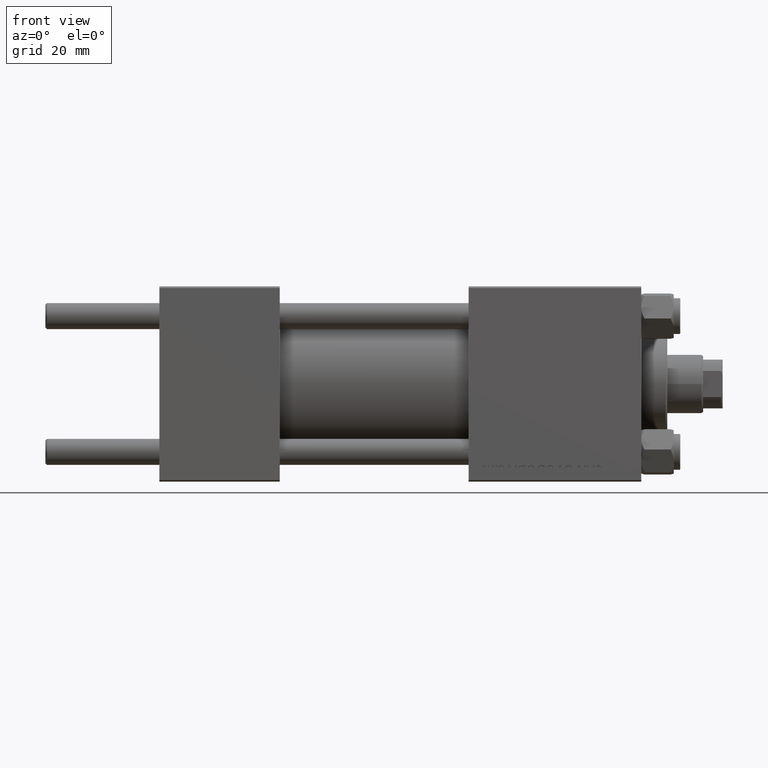
[diagram: clean part render]
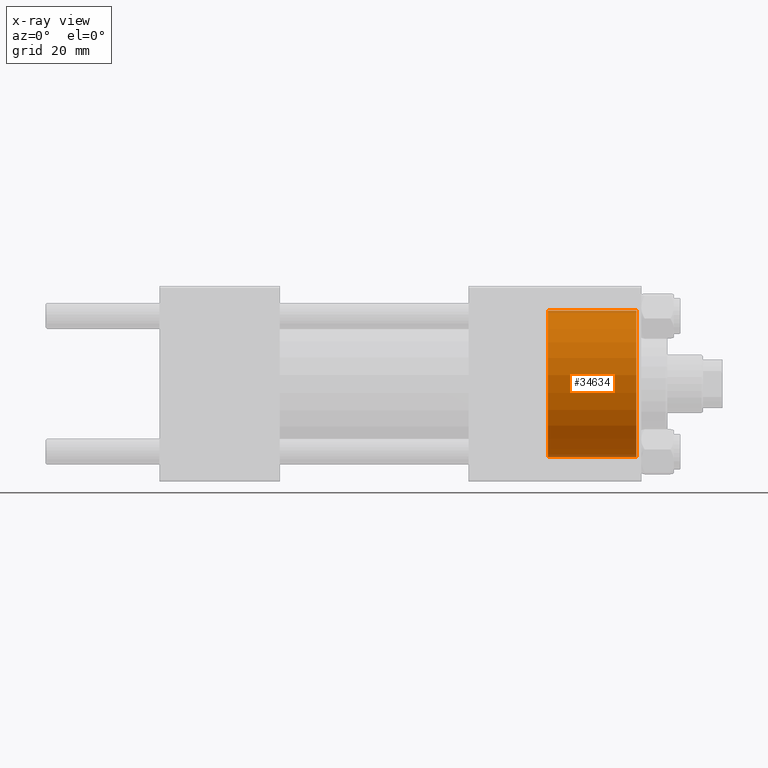
[diagram: x-ray — body ghosted, one internal face saturated and labeled with its STEP entity id]
A machine part, front view, then the same camera in x-ray: the body is ghosted and one INTERNAL B-rep face — a face not visible from any outside direction — is saturated and labeled: STEP entity #34634.
In plain terms, the highlighted cylindrical surface (partial cylindrical patch) has radius 22.5 mm, axis along (1, 0, 0).
Its self-contained STEP definition (entity closure, byte-faithful):
#208 = ORIENTED_EDGE ( 'NONE', *, *, #4342, .F. ) ;
#394 = AXIS2_PLACEMENT_3D ( 'NONE', #34144, #15897, #34658 ) ;
#1663 = VERTEX_POINT ( 'NONE', #7609 ) ;
#2715 = CIRCLE ( 'NONE', #9202, 22.50000000000000355 ) ;
#3364 = CARTESIAN_POINT ( 'NONE',  ( 119.2999999999999829, 0.000000000000000000, -22.50000000000000355 ) ) ;
#3372 = VERTEX_POINT ( 'NONE', #7784 ) ;
#3857 = VERTEX_POINT ( 'NONE', #5865 ) ;
#4182 = CARTESIAN_POINT ( 'NONE',  ( 119.2999999999999829, 0.000000000000000000, -22.50000000000000355 ) ) ;
#4342 = EDGE_CURVE ( 'NONE', #3857, #21790, #2715, .T. ) ;
#5433 = AXIS2_PLACEMENT_3D ( 'NONE', #44154, #21634, #48450 ) ;
#5865 = CARTESIAN_POINT ( 'NONE',  ( 119.2999999999999829, 2.755455298081545172E-15, 22.50000000000000355 ) ) ;
#7609 = CARTESIAN_POINT ( 'NONE',  ( 146.4999999999999432, 0.000000000000000000, -22.50000000000000355 ) ) ;
#7784 = CARTESIAN_POINT ( 'NONE',  ( 146.4999999999999432, 2.755455298081545172E-15, 22.50000000000000355 ) ) ;
#9202 = AXIS2_PLACEMENT_3D ( 'NONE', #28311, #21198, #24495 ) ;
#9568 = ORIENTED_EDGE ( 'NONE', *, *, #42548, .F. ) ;
#10959 = DIRECTION ( 'NONE',  ( 1.000000000000000000, -0.000000000000000000, -0.000000000000000000 ) ) ;
#14848 = ORIENTED_EDGE ( 'NONE', *, *, #16673, .T. ) ;
#15897 = DIRECTION ( 'NONE',  ( 1.000000000000000000, -0.000000000000000000, -0.000000000000000000 ) ) ;
#16673 = EDGE_CURVE ( 'NONE', #3372, #1663, #36195, .T. ) ;
#21198 = DIRECTION ( 'NONE',  ( 1.000000000000000000, 0.000000000000000000, 0.000000000000000000 ) ) ;
#21634 = DIRECTION ( 'NONE',  ( 1.000000000000000000, 0.000000000000000000, 0.000000000000000000 ) ) ;
#21760 = EDGE_CURVE ( 'NONE', #3857, #3372, #27427, .T. ) ;
#21790 = VERTEX_POINT ( 'NONE', #3364 ) ;
#24120 = VECTOR ( 'NONE', #10959, 1000.000000000000000 ) ;
#24495 = DIRECTION ( 'NONE',  ( 0.000000000000000000, 0.000000000000000000, -1.000000000000000000 ) ) ;
#26736 = DIRECTION ( 'NONE',  ( 1.000000000000000000, -0.000000000000000000, -0.000000000000000000 ) ) ;
#27184 = ORIENTED_EDGE ( 'NONE', *, *, #21760, .T. ) ;
#27427 = LINE ( 'NONE', #34772, #24120 ) ;
#28145 = VECTOR ( 'NONE', #26736, 1000.000000000000000 ) ;
#28311 = CARTESIAN_POINT ( 'NONE',  ( 119.2999999999999829, 0.000000000000000000, 0.000000000000000000 ) ) ;
#32683 = EDGE_LOOP ( 'NONE', ( #208, #27184, #14848, #9568 ) ) ;
#34144 = CARTESIAN_POINT ( 'NONE',  ( 119.2999999999999829, 0.000000000000000000, 0.000000000000000000 ) ) ;
#34400 = CYLINDRICAL_SURFACE ( 'NONE', #394, 22.50000000000000355 ) ;
#34634 = ADVANCED_FACE ( 'NONE', ( #45760 ), #34400, .F. ) ;
#34658 = DIRECTION ( 'NONE',  ( 0.000000000000000000, 0.000000000000000000, -1.000000000000000000 ) ) ;
#34772 = CARTESIAN_POINT ( 'NONE',  ( 119.2999999999999829, 2.755455298081545172E-15, 22.50000000000000355 ) ) ;
#35096 = LINE ( 'NONE', #4182, #28145 ) ;
#36195 = CIRCLE ( 'NONE', #5433, 22.50000000000000355 ) ;
#42548 = EDGE_CURVE ( 'NONE', #21790, #1663, #35096, .T. ) ;
#44154 = CARTESIAN_POINT ( 'NONE',  ( 146.4999999999999432, 0.000000000000000000, 0.000000000000000000 ) ) ;
#45760 = FACE_OUTER_BOUND ( 'NONE', #32683, .T. ) ;
#48450 = DIRECTION ( 'NONE',  ( 0.000000000000000000, 0.000000000000000000, 1.000000000000000000 ) ) ;